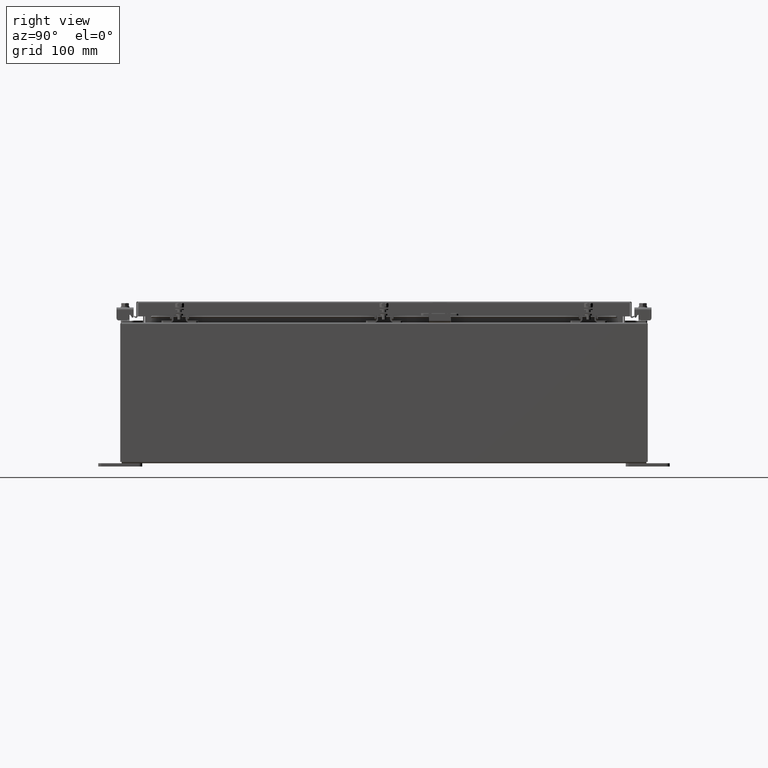
[diagram: clean part render]
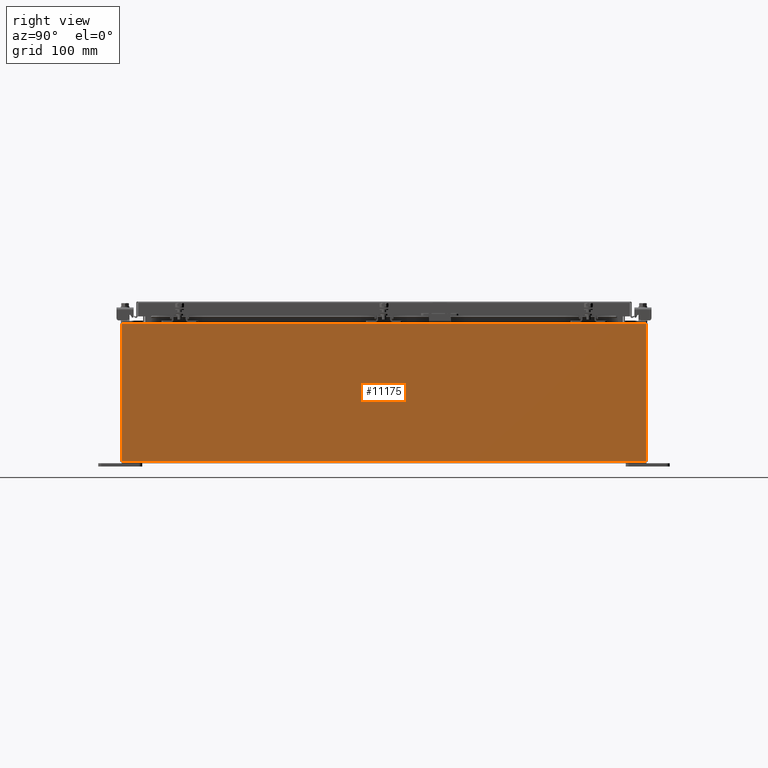
[diagram: same view with one face highlighted and labeled with its STEP entity id]
A machine part, right view. The second image highlights one B-rep face of the part: STEP entity #11175.
In plain terms, the highlighted planar face has unit normal (-1, 0, 0).
Its self-contained STEP definition (entity closure, byte-faithful):
#1017 = ORIENTED_EDGE ( 'NONE', *, *, #18740, .T. ) ;
#1439 = LINE ( 'NONE', #5642, #16823 ) ;
#3146 = VECTOR ( 'NONE', #25208, 39.37007874015748100 ) ;
#5642 = CARTESIAN_POINT ( 'NONE',  ( 11.99999999999999600, -14.92530000000000000, 0.01299999999999984700 ) ) ;
#5747 = AXIS2_PLACEMENT_3D ( 'NONE', #20476, #23362, #6035 ) ;
#6035 = DIRECTION ( 'NONE',  ( 3.584876173029202900E-015, 0.0000000000000000000, 1.000000000000000000 ) ) ;
#6461 = EDGE_CURVE ( 'NONE', #22420, #20862, #12544, .T. ) ;
#7211 = ORIENTED_EDGE ( 'NONE', *, *, #9469, .F. ) ;
#9217 = CARTESIAN_POINT ( 'NONE',  ( 11.99999999999999600, 14.92530000000000000, 0.01299999999999766100 ) ) ;
#9469 = EDGE_CURVE ( 'NONE', #22420, #36346, #1439, .T. ) ;
#11175 = ADVANCED_FACE ( 'NONE', ( #17676 ), #17547, .F. ) ;
#11663 = EDGE_LOOP ( 'NONE', ( #29922, #1017, #7211, #12656 ) ) ;
#12136 = CARTESIAN_POINT ( 'NONE',  ( 11.99999999999999600, 14.92530000000000000, -4.327932773236200000E-014 ) ) ;
#12544 = LINE ( 'NONE', #12136, #15271 ) ;
#12656 = ORIENTED_EDGE ( 'NONE', *, *, #6461, .T. ) ;
#15271 = VECTOR ( 'NONE', #32391, 39.37007874015748100 ) ;
#16823 = VECTOR ( 'NONE', #37407, 39.37007874015748100 ) ;
#16846 = EDGE_CURVE ( 'NONE', #20862, #37245, #26237, .T. ) ;
#17547 = PLANE ( 'NONE',  #5747 ) ;
#17676 = FACE_OUTER_BOUND ( 'NONE', #11663, .T. ) ;
#18740 = EDGE_CURVE ( 'NONE', #37245, #36346, #34314, .T. ) ;
#19658 = DIRECTION ( 'NONE',  ( -3.584876173029202900E-015, 0.0000000000000000000, -1.000000000000000000 ) ) ;
#20476 = CARTESIAN_POINT ( 'NONE',  ( 11.99999999999999600, 0.0000000000000000000, -4.327932773236200000E-014 ) ) ;
#20862 = VERTEX_POINT ( 'NONE', #31547 ) ;
#22420 = VERTEX_POINT ( 'NONE', #9217 ) ;
#22898 = CARTESIAN_POINT ( 'NONE',  ( 12.00000000000002500, -14.92530000000000200, 7.837599999999998300 ) ) ;
#23362 = DIRECTION ( 'NONE',  ( -1.000000000000000000, 0.0000000000000000000, 3.584876173029202900E-015 ) ) ;
#23729 = CARTESIAN_POINT ( 'NONE',  ( 11.99999999999999600, -14.92530000000000000, 0.01299999999999996600 ) ) ;
#25208 = DIRECTION ( 'NONE',  ( -0.0000000000000000000, -1.000000000000000000, -0.0000000000000000000 ) ) ;
#26237 = LINE ( 'NONE', #30883, #3146 ) ;
#28351 = CARTESIAN_POINT ( 'NONE',  ( 11.99999999999999600, -14.92530000000000000, -4.327932773236200000E-014 ) ) ;
#29922 = ORIENTED_EDGE ( 'NONE', *, *, #16846, .T. ) ;
#30883 = CARTESIAN_POINT ( 'NONE',  ( 12.00000000000002500, 14.92530000000000200, 7.837599999999992100 ) ) ;
#31547 = CARTESIAN_POINT ( 'NONE',  ( 12.00000000000002500, 14.92530000000000200, 7.837599999999992100 ) ) ;
#32391 = DIRECTION ( 'NONE',  ( 3.584876173029202900E-015, 0.0000000000000000000, 1.000000000000000000 ) ) ;
#34314 = LINE ( 'NONE', #28351, #35226 ) ;
#35226 = VECTOR ( 'NONE', #19658, 39.37007874015748100 ) ;
#36346 = VERTEX_POINT ( 'NONE', #23729 ) ;
#37245 = VERTEX_POINT ( 'NONE', #22898 ) ;
#37407 = DIRECTION ( 'NONE',  ( 2.624627117933885000E-031, -1.000000000000000000, 7.321388497823866900E-017 ) ) ;